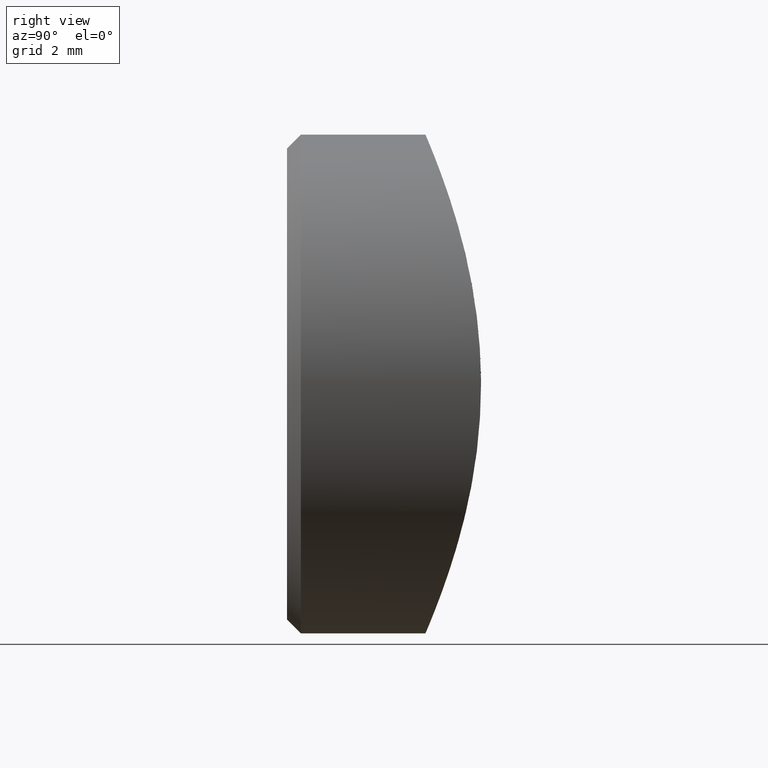
[diagram: clean part render]
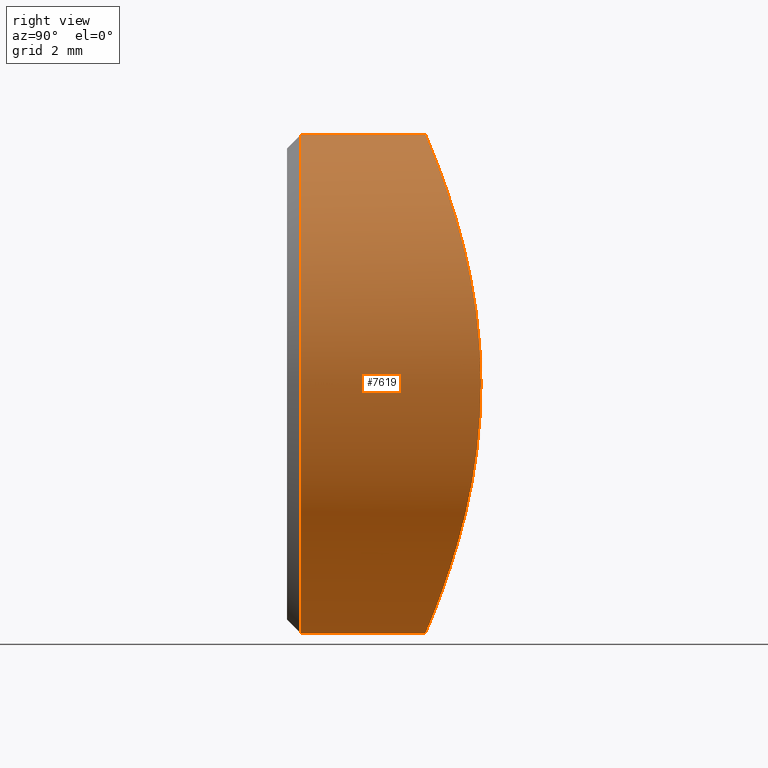
[diagram: same view with one face highlighted and labeled with its STEP entity id]
A machine part, right view. The second image highlights one B-rep face of the part: STEP entity #7619.
In plain terms, the highlighted cylindrical surface (bore or boss wall) has radius 9 mm, axis along (-0, -1, -0).
Its self-contained STEP definition (entity closure, byte-faithful):
#40 = CARTESIAN_POINT ( 'NONE',  ( 8.077207036748266233, 6.597477843747800996, -4.012564686397484870 ) ) ;
#82 = CARTESIAN_POINT ( 'NONE',  ( 8.999177269337847562, 7.004823280732889401, -0.6072532981125103868 ) ) ;
#124 = CARTESIAN_POINT ( 'NONE',  ( 0.6056316833783885745, 5.000354300890639259, 8.999165423908928929 ) ) ;
#167 = CARTESIAN_POINT ( 'NONE',  ( 2.373311274093153678, 5.125012555181623242, 8.702113382246354334 ) ) ;
#209 = CARTESIAN_POINT ( 'NONE',  ( -8.924718129952669443, 6.970062329736572693, 1.199661088575569856 ) ) ;
#284 = CARTESIAN_POINT ( 'NONE',  ( -8.082720273072137473, 6.599747324676881632, -4.001864192615545157 ) ) ;
#304 = AXIS2_PLACEMENT_3D ( 'NONE', #725, #1624, #3422 ) ;
#323 = CARTESIAN_POINT ( 'NONE',  ( -9.000597321137686180, 7.005489110041646761, -0.5845091691935068168 ) ) ;
#422 = CIRCLE ( 'NONE', #4371, 9.000000000000000000 ) ;
#644 = ORIENTED_EDGE ( 'NONE', *, *, #9498, .T. ) ;
#725 = CARTESIAN_POINT ( 'NONE',  ( 0.000000000000000000, 12.00000000000000000, 0.000000000000000000 ) ) ;
#907 = CARTESIAN_POINT ( 'NONE',  ( 8.515898256693983370, 6.785352061879766694, -2.927005611370706362 ) ) ;
#950 = CARTESIAN_POINT ( 'NONE',  ( 6.161618599508400962, 5.914030180179468132, -6.566462896025505813 ) ) ;
#985 = B_SPLINE_CURVE_WITH_KNOTS ( 'NONE', 3,
 ( #3675, #4411, #3558, #1027, #1944, #6215, #9635, #10489, #8891, #8854, #3634, #2682, #950, #987, #3594, #6327, #8052, #10529, #40, #9754, #907, #7160, #1861, #2719, #82, #7970, #6252, #7036, #1774, #4531, #5395, #7895, #8815, #2802, #5320, #1900, #9789, #10611, #2646, #9714, #8780, #8933, #167, #3516, #124, #4569, #10652, #5434, #6996, #4493, #5284, #11381, #6174, #10572, #1822, #7931, #9675, #4454, #5359, #4738, #4636, #5474, #10683, #3826, #1097, #10827, #10749, #6358, #209, #10718, #2086, #323, #1172, #6462, #8091, #284, #9933, #1208, #9031, #6392, #7239, #8132, #4704, #3786, #7316, #2019, #2909, #10786, #2874, #8964, #8995, #1980 ),
 .UNSPECIFIED., .T., .F.,
 ( 4, 2, 2, 2, 2, 2, 2, 2, 2, 2, 2, 2, 2, 2, 2, 2, 2, 2, 2, 2, 2, 2, 2, 2, 2, 2, 2, 2, 2, 2, 2, 2, 2, 2, 2, 2, 2, 2, 2, 2, 2, 2, 2, 2, 2, 4 ),
 ( 0.000000000000000000, 0.001779233841858174391, 0.002668850762787262562, 0.003558467683716350517, 0.005337701525574525124, 0.006227318446503611778, 0.007116935367432699298, 0.008006552288361785952, 0.008896169209290875207, 0.01067540305114904504, 0.01156501997207813083, 0.01245463689300721662, 0.01423387073486538645, 0.01512348765579447050, 0.01601310457672355456, 0.01779233841858172613, 0.01957157226043989423, 0.02135080610229806233, 0.02313003994415623044, 0.02401965686508531275, 0.02490927378601439854, 0.02668850762787257011, 0.02846774146973074168, 0.02935735839065982747, 0.03024697531158891325, 0.03202620915344708136, 0.03291582607437616714, 0.03380544299530525987, 0.03469505991623434565, 0.03558467683716343144, 0.03736391067902160995, 0.03825352759995069574, 0.03914314452087978152, 0.04092237836273796003, 0.04181199528366704582, 0.04270161220459613161, 0.04448084604645431706, 0.04626007988831248863, 0.04803931373017066020, 0.04981854757202883177, 0.05070816449295791756, 0.05159778141388701028, 0.05337701525574519573, 0.05515624909760337424, 0.05604586601853246003, 0.05693548293946154581 ),
 .UNSPECIFIED. ) ;
#987 = CARTESIAN_POINT ( 'NONE',  ( 6.571284294524667224, 6.043007714021153554, -6.156476382738828690 ) ) ;
#1027 = CARTESIAN_POINT ( 'NONE',  ( 2.062799011341776900, 5.098588930884207393, -8.765406528018505838 ) ) ;
#1097 = CARTESIAN_POINT ( 'NONE',  ( -8.190086097646776864, 6.645520949442167868, 3.742825338834206761 ) ) ;
#1172 = CARTESIAN_POINT ( 'NONE',  ( -8.943048938588836094, 6.978173618189947192, -1.175573928356002051 ) ) ;
#1208 = CARTESIAN_POINT ( 'NONE',  ( -7.151229908993273376, 6.239529866334565078, -5.495468084443199785 ) ) ;
#1242 = VERTEX_POINT ( 'NONE', #3593 ) ;
#1624 = DIRECTION ( 'NONE',  ( -0.000000000000000000, -1.000000000000000000, -0.000000000000000000 ) ) ;
#1660 = DIRECTION ( 'NONE',  ( 0.000000000000000000, 0.000000000000000000, 1.000000000000000000 ) ) ;
#1774 = CARTESIAN_POINT ( 'NONE',  ( 8.882958054720553775, 6.950658699331389911, 1.476706036060786209 ) ) ;
#1822 = CARTESIAN_POINT ( 'NONE',  ( -4.770189362396675570, 5.542136515415310605, 7.637420092930223170 ) ) ;
#1861 = CARTESIAN_POINT ( 'NONE',  ( 8.763979072769771506, 6.896196421503342222, -2.069020228863647226 ) ) ;
#1900 = CARTESIAN_POINT ( 'NONE',  ( 5.957975050726612487, 5.849870582621067072, 6.770528059431907941 ) ) ;
#1944 = CARTESIAN_POINT ( 'NONE',  ( 2.350093200694862716, 5.128708838649616908, -8.692849416458683365 ) ) ;
#1980 = CARTESIAN_POINT ( 'NONE',  ( 1.626303258728256651E-16, 5.000000000000002665, -9.000000000000003553 ) ) ;
#2019 = CARTESIAN_POINT ( 'NONE',  ( -2.924632961784528362, 5.195350219705859196, -8.532267992610085727 ) ) ;
#2086 = CARTESIAN_POINT ( 'NONE',  ( -8.999694399068328465, 7.005065750727922591, 0.3059436221164130165 ) ) ;
#2646 = CARTESIAN_POINT ( 'NONE',  ( 4.528202494090420416, 5.487560741744223591, 7.783427689067613287 ) ) ;
#2682 = CARTESIAN_POINT ( 'NONE',  ( 5.946727910961706165, 5.849786806518878279, -6.761776207005359751 ) ) ;
#2719 = CARTESIAN_POINT ( 'NONE',  ( 8.939959221517511878, 6.976738667486430678, -1.195752775107953081 ) ) ;
#2802 = CARTESIAN_POINT ( 'NONE',  ( 7.154365360251378370, 6.240664635436224295, 5.491314423262781297 ) ) ;
#2874 = CARTESIAN_POINT ( 'NONE',  ( -1.198574999346177616, 5.031812745133201759, -8.924846665892040676 ) ) ;
#2909 = CARTESIAN_POINT ( 'NONE',  ( -2.360954544969890989, 5.123857303250895612, -8.704888851505394598 ) ) ;
#3422 = DIRECTION ( 'NONE',  ( 0.000000000000000000, 0.000000000000000000, -1.000000000000000000 ) ) ;
#3516 = CARTESIAN_POINT ( 'NONE',  ( 1.198176942268921019, 5.025674173235055164, 8.940008710075385778 ) ) ;
#3558 = CARTESIAN_POINT ( 'NONE',  ( 1.192816297505914003, 5.025582776463833667, -8.940198808242058703 ) ) ;
#3593 = CARTESIAN_POINT ( 'NONE',  ( 0.000000000000000000, 0.5000000000000056621, 9.000000000000000000 ) ) ;
#3594 = CARTESIAN_POINT ( 'NONE',  ( 6.766058341484288086, 6.107745444864717044, -5.941803343036885288 ) ) ;
#3634 = CARTESIAN_POINT ( 'NONE',  ( 5.496118570191409702, 5.723490763083146859, -7.132872561810700951 ) ) ;
#3675 = CARTESIAN_POINT ( 'NONE',  ( 1.626303258728256651E-16, 5.000000000000002665, -9.000000000000003553 ) ) ;
#3786 = CARTESIAN_POINT ( 'NONE',  ( -4.537748013805203762, 5.485377230612324517, -7.794034327348901670 ) ) ;
#3826 = CARTESIAN_POINT ( 'NONE',  ( -8.062523815876931010, 6.592388767899489466, 4.010301323649107630 ) ) ;
#4011 = ORIENTED_EDGE ( 'NONE', *, *, #10241, .T. ) ;
#4371 = AXIS2_PLACEMENT_3D ( 'NONE', #6905, #9571, #1660 ) ;
#4411 = CARTESIAN_POINT ( 'NONE',  ( 0.6021029671478492773, 5.000000000000000000, -9.000000000000001776 ) ) ;
#4454 = CARTESIAN_POINT ( 'NONE',  ( -5.938357301138113442, 5.847343093522867186, 6.769115459983834349 ) ) ;
#4493 = CARTESIAN_POINT ( 'NONE',  ( -2.349880849878039246, 5.122502745785842748, 8.708165720517774488 ) ) ;
#4531 = CARTESIAN_POINT ( 'NONE',  ( 8.708632727856867817, 6.870849649881018095, 2.347367480125882366 ) ) ;
#4569 = CARTESIAN_POINT ( 'NONE',  ( -0.2840180267372094947, 4.999828405496154815, 9.000404200711527025 ) ) ;
#4636 = CARTESIAN_POINT ( 'NONE',  ( -7.145208501755587527, 6.237381206070673478, 5.503107534921187316 ) ) ;
#4704 = CARTESIAN_POINT ( 'NONE',  ( -5.261668414912783476, 5.661827397009829177, -7.307487771093478912 ) ) ;
#4738 = CARTESIAN_POINT ( 'NONE',  ( -6.777008905551380025, 6.107705160587613591, 5.951007625059744122 ) ) ;
#5271 = FACE_OUTER_BOUND ( 'NONE', #7463, .T. ) ;
#5284 = CARTESIAN_POINT ( 'NONE',  ( -2.913997354089953085, 5.193944616278098003, 8.535679088137095860 ) ) ;
#5320 = CARTESIAN_POINT ( 'NONE',  ( 6.778994992429149491, 6.108448021574525377, 5.948339583552387566 ) ) ;
#5359 = CARTESIAN_POINT ( 'NONE',  ( -6.156346227854128550, 5.912406709327584942, 6.571528474232360750 ) ) ;
#5395 = CARTESIAN_POINT ( 'NONE',  ( 8.535862780786027670, 6.792772083227156976, 2.913880981160765327 ) ) ;
#5434 = CARTESIAN_POINT ( 'NONE',  ( -1.176185555953898509, 5.030557838269096749, 8.927820622814355289 ) ) ;
#5474 = CARTESIAN_POINT ( 'NONE',  ( -7.631813079358008345, 6.420579696738705877, 4.779118997300306759 ) ) ;
#6174 = CARTESIAN_POINT ( 'NONE',  ( -4.001414082937644778, 5.379368647660470515, 8.066924183368175960 ) ) ;
#6215 = CARTESIAN_POINT ( 'NONE',  ( 2.919229205705463404, 5.199991664218054588, -8.518607273124786161 ) ) ;
#6252 = CARTESIAN_POINT ( 'NONE',  ( 8.985908387313484624, 6.998580619473865561, 0.5859224334364804276 ) ) ;
#6327 = CARTESIAN_POINT ( 'NONE',  ( 7.135533890716600602, 6.235972483410105127, -5.492606716498847241 ) ) ;
#6358 = CARTESIAN_POINT ( 'NONE',  ( -8.879537456849737609, 6.949077686970074552, 1.497239583425633569 ) ) ;
#6392 = CARTESIAN_POINT ( 'NONE',  ( -6.163325110418559127, 5.914529427569705788, -6.564975316794038562 ) ) ;
#6462 = CARTESIAN_POINT ( 'NONE',  ( -8.707814612193352843, 6.870470816646472301, -2.352458938790882303 ) ) ;
#6905 = CARTESIAN_POINT ( 'NONE',  ( 0.000000000000000000, 0.5000000000000056621, 0.000000000000000000 ) ) ;
#6914 = CYLINDRICAL_SURFACE ( 'NONE', #304, 9.000000000000000000 ) ;
#6996 = CARTESIAN_POINT ( 'NONE',  ( -1.474658854747467274, 5.049324150523652577, 8.883349808392720703 ) ) ;
#7036 = CARTESIAN_POINT ( 'NONE',  ( 8.927007353656966515, 6.971125995529800612, 1.182537251400292977 ) ) ;
#7160 = CARTESIAN_POINT ( 'NONE',  ( 8.690057021740930310, 6.862678917740153928, -2.360252936922305533 ) ) ;
#7199 = FACE_OUTER_BOUND ( 'NONE', #8097, .T. ) ;
#7239 = CARTESIAN_POINT ( 'NONE',  ( -5.945180953308142335, 5.849336675132446040, -6.763125855500402572 ) ) ;
#7316 = CARTESIAN_POINT ( 'NONE',  ( -4.020998144447337275, 5.377407359401221498, -8.073701070836477811 ) ) ;
#7463 = EDGE_LOOP ( 'NONE', ( #4011 ) ) ;
#7619 = ADVANCED_FACE ( 'NONE', ( #5271, #7199 ), #6914, .T. ) ;
#7895 = CARTESIAN_POINT ( 'NONE',  ( 8.079738853933967846, 6.598488097133801134, 4.008675072515660354 ) ) ;
#7931 = CARTESIAN_POINT ( 'NONE',  ( -5.254185387353386361, 5.659903451634357374, 7.312894648792556573 ) ) ;
#7970 = CARTESIAN_POINT ( 'NONE',  ( 9.000398719899150635, 7.005395990407798479, 0.2851489191574700932 ) ) ;
#8052 = CARTESIAN_POINT ( 'NONE',  ( 7.310868641113823507, 6.299705153449574269, -5.257126221080812734 ) ) ;
#8091 = CARTESIAN_POINT ( 'NONE',  ( -8.534447482752957725, 6.792179975242603085, -2.916931640097456757 ) ) ;
#8097 = EDGE_LOOP ( 'NONE', ( #644 ) ) ;
#8132 = CARTESIAN_POINT ( 'NONE',  ( -5.494873940252952060, 5.723158575834597528, -7.133821436344268463 ) ) ;
#8780 = CARTESIAN_POINT ( 'NONE',  ( 3.746400243694561816, 5.331855595604459097, 8.188420323721343763 ) ) ;
#8815 = CARTESIAN_POINT ( 'NONE',  ( 7.802678948593630537, 6.485076385431646884, 4.523016585009667523 ) ) ;
#8854 = CARTESIAN_POINT ( 'NONE',  ( 5.259254738734693291, 5.661185315811735563, -7.309313052471046568 ) ) ;
#8891 = CARTESIAN_POINT ( 'NONE',  ( 4.529565519705973209, 5.483491791423597661, -7.799122195888342546 ) ) ;
#8933 = CARTESIAN_POINT ( 'NONE',  ( 2.936122719315643614, 5.197165761455980970, 8.527728426296667052 ) ) ;
#8964 = CARTESIAN_POINT ( 'NONE',  ( -0.6033492458115409240, 5.006493839533262324, -8.984733703695431117 ) ) ;
#8995 = CARTESIAN_POINT ( 'NONE',  ( -0.3010514835739243611, 5.000000000000002665, -9.000000000000003553 ) ) ;
#9031 = CARTESIAN_POINT ( 'NONE',  ( -6.782949011127817229, 6.109724398131178624, -5.944199863712849030 ) ) ;
#9498 = EDGE_CURVE ( 'NONE', #10940, #10940, #985, .T. ) ;
#9571 = DIRECTION ( 'NONE',  ( -0.000000000000000000, 1.000000000000000000, -0.000000000000000000 ) ) ;
#9635 = CARTESIAN_POINT ( 'NONE',  ( 3.199895043325697408, 5.241074314712920845, -8.417092233009810798 ) ) ;
#9675 = CARTESIAN_POINT ( 'NONE',  ( -5.487775648183642829, 5.721253724313241307, 7.139280774824245057 ) ) ;
#9714 = CARTESIAN_POINT ( 'NONE',  ( 4.010791316051367517, 5.381178926905858084, 8.062252627989158427 ) ) ;
#9754 = CARTESIAN_POINT ( 'NONE',  ( 8.415697267540741322, 6.741555134047302111, -3.203361784182719330 ) ) ;
#9789 = CARTESIAN_POINT ( 'NONE',  ( 5.510804855929367640, 5.722669215168489032, 7.139602172190116391 ) ) ;
#9933 = CARTESIAN_POINT ( 'NONE',  ( -7.800776151710167916, 6.484312119554649811, -4.526383778395697277 ) ) ;
#10241 = EDGE_CURVE ( 'NONE', #1242, #1242, #422, .T. ) ;
#10489 = CARTESIAN_POINT ( 'NONE',  ( 4.015205110916594045, 5.376414703610313595, -8.076212460457389497 ) ) ;
#10529 = CARTESIAN_POINT ( 'NONE',  ( 7.801436586454786770, 6.484530737094385877, -4.525736708593667501 ) ) ;
#10570 = CARTESIAN_POINT ( 'NONE',  ( 0.000000000000000000, 5.000000000000000888, -9.000000000000000000 ) ) ;
#10572 = CARTESIAN_POINT ( 'NONE',  ( -4.519785051957829758, 5.485716337337319892, 7.788332525479416013 ) ) ;
#10611 = CARTESIAN_POINT ( 'NONE',  ( 4.782110503387447586, 5.544881247224036080, 7.630015823555714505 ) ) ;
#10652 = CARTESIAN_POINT ( 'NONE',  ( -0.5810668950158626167, 5.005872153720946294, 8.986198016886818962 ) ) ;
#10683 = CARTESIAN_POINT ( 'NONE',  ( -7.782974310893348679, 6.479756102249877081, 4.529030565586700696 ) ) ;
#10718 = CARTESIAN_POINT ( 'NONE',  ( -8.984747058556031618, 6.998036121399172416, 0.6034075905364755243 ) ) ;
#10749 = CARTESIAN_POINT ( 'NONE',  ( -8.702840702240584037, 6.868229643639236492, 2.369010549263350196 ) ) ;
#10786 = CARTESIAN_POINT ( 'NONE',  ( -1.492105308418427034, 5.050576932623531690, -8.880367155625306097 ) ) ;
#10827 = CARTESIAN_POINT ( 'NONE',  ( -8.529966708524142405, 6.790200597281833339, 2.929961632345253086 ) ) ;
#10940 = VERTEX_POINT ( 'NONE', #10570 ) ;
#11381 = CARTESIAN_POINT ( 'NONE',  ( -3.732290454403737634, 5.329292206423008160, 8.194956222140104884 ) ) ;